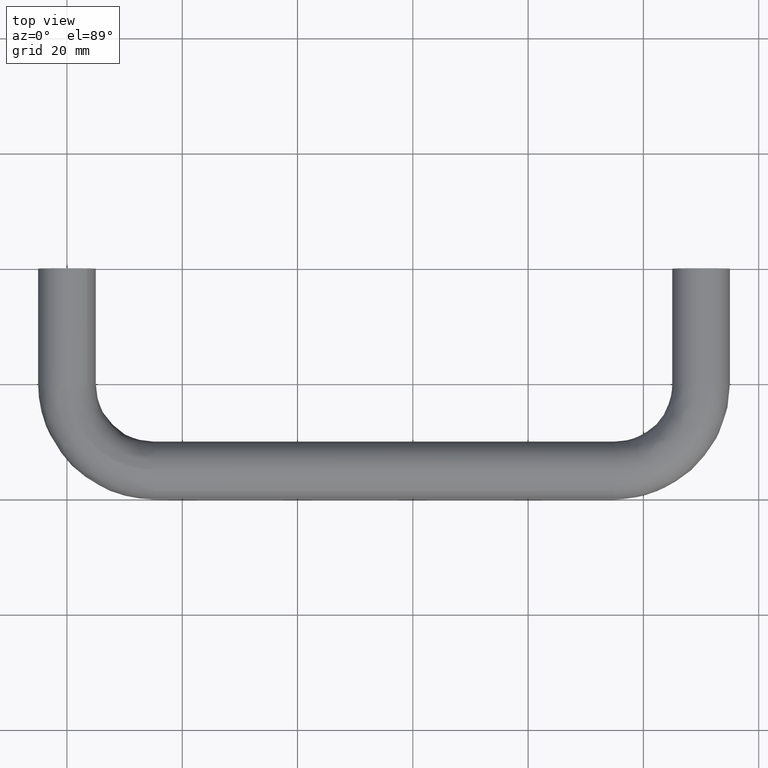
[diagram: clean part render]
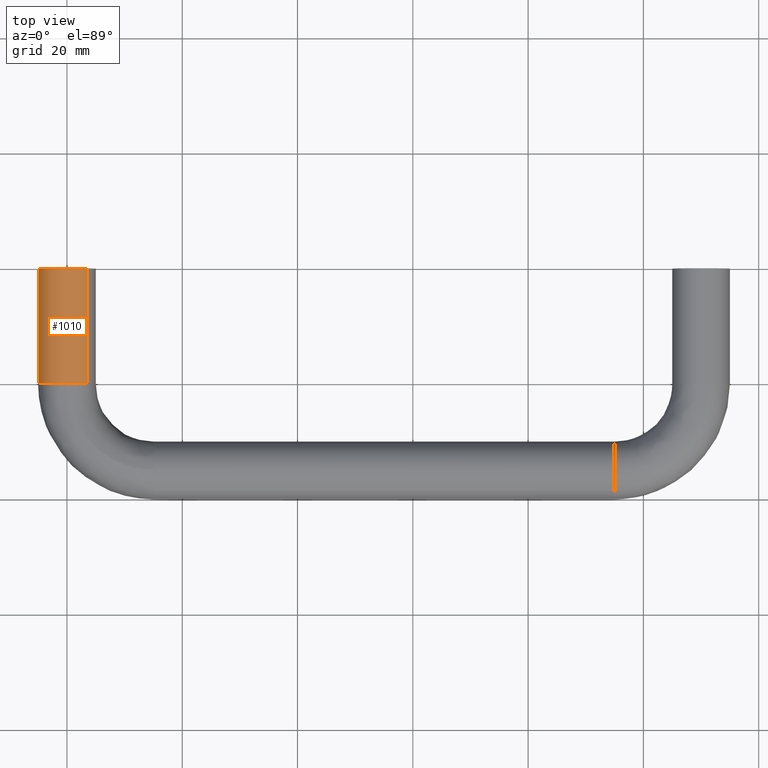
[diagram: same view with one face highlighted and labeled with its STEP entity id]
A machine part, top view. The second image highlights one B-rep face of the part: STEP entity #1010.
In plain terms, the highlighted face is a freeform B-spline surface patch.
Its self-contained STEP definition (entity closure, byte-faithful):
#874=CARTESIAN_POINT('',(3.504546321499253,0.500000000005700,3.566252245770907));
#875=CARTESIAN_POINT('',(-0.061705924271653,0.500000000005699,7.070798567270160));
#876=CARTESIAN_POINT('',(-3.566252245770907,0.500000000005699,3.504546321499253));
#877=CARTESIAN_POINT('',(-7.070798567270160,0.500000000005698,-0.061705924271653));
#878=CARTESIAN_POINT('',(-3.504546321499253,0.500000000005699,-3.566252245770907));
#879=CARTESIAN_POINT('',(0.061705924271653,0.500000000005699,-7.070798567270160));
#880=CARTESIAN_POINT('',(3.566252245770907,0.500000000005700,-3.504546321499253));
#881=CARTESIAN_POINT('',(3.504546321499256,-20.512500000233771,3.566252245770907));
#882=CARTESIAN_POINT('',(-0.061705924271651,-20.512500000233775,7.070798567270160));
#883=CARTESIAN_POINT('',(-3.566252245770904,-20.512500000233771,3.504546321499253));
#884=CARTESIAN_POINT('',(-7.070798567270158,-20.512500000233775,-0.061705924271653));
#885=CARTESIAN_POINT('',(-3.504546321499251,-20.512500000233771,-3.566252245770907));
#886=CARTESIAN_POINT('',(0.061705924271656,-20.512500000233775,-7.070798567270160));
#887=CARTESIAN_POINT('',(3.566252245770909,-20.512500000233771,-3.504546321499253));
#895=(BOUNDED_SURFACE()B_SPLINE_SURFACE(2,1,((#874,#881),(#875,#882),(#876,#883),(#877,#884),(#878,#885),(#879,#886),(#880,#887)),.UNSPECIFIED.,.F.,.F.,.U.)B_SPLINE_SURFACE_WITH_KNOTS((3,2,2,3),(2,2),(0.0,8.284271247461899,16.568542494923800,24.852813742385688),(0.0,21.012500000239470),.UNSPECIFIED.)GEOMETRIC_REPRESENTATION_ITEM()RATIONAL_B_SPLINE_SURFACE(((1.0,1.0),(0.707106781186548,0.707106781186548),(1.0,1.0),(0.707106781186548,0.707106781186548),(1.0,1.0),(0.707106781186548,0.707106781186548),(1.0,1.0)))REPRESENTATION_ITEM('')SURFACE());
#896=CARTESIAN_POINT('',(0.062830199628879,-20.000000000205208,4.999605221016415));
#897=VERTEX_POINT('',#896);
#898=CARTESIAN_POINT('',(3.504546321925250,-20.000000000062158,3.566252245321120));
#899=VERTEX_POINT('',#898);
#900=CARTESIAN_POINT('',(0.062830199628879,-20.000000000205205,4.999605221016415));
#901=CARTESIAN_POINT('',(2.071645074840382,-20.000000000121712,4.974360379779231));
#902=CARTESIAN_POINT('',(3.504546321925250,-20.000000000062158,3.566252245321120));
#910=(BOUNDED_CURVE()B_SPLINE_CURVE(2,(#900,#901,#902),.UNSPECIFIED.,.F.,.U.)B_SPLINE_CURVE_WITH_KNOTS((3,3),(0.752215704093194,0.873683242447675),.UNSPECIFIED.)CURVE()GEOMETRIC_REPRESENTATION_ITEM()RATIONAL_B_SPLINE_CURVE((0.994854295609666,0.855068723091266,0.853569641250545))REPRESENTATION_ITEM(''));
#911=EDGE_CURVE('',#897,#899,#910,.T.);
#912=ORIENTED_EDGE('',*,*,#911,.T.);
#913=CARTESIAN_POINT('',(3.504546037652561,1.110223E-016,3.566252524706231));
#914=VERTEX_POINT('',#913);
#915=CARTESIAN_POINT('',(3.504546037652561,1.110223E-016,3.566252524706231));
#916=CARTESIAN_POINT('',(3.504546321925250,-20.000000000062158,3.566252245321120));
#917=QUASI_UNIFORM_CURVE('',1,(#915,#916),.UNSPECIFIED.,.F.,.U.);
#918=EDGE_CURVE('',#914,#899,#917,.T.);
#919=ORIENTED_EDGE('',*,*,#918,.F.);
#920=CARTESIAN_POINT('',(-5.0,0.0,0.0));
#921=VERTEX_POINT('',#920);
#922=CARTESIAN_POINT('',(-5.0,0.0,0.0));
#923=CARTESIAN_POINT('',(-5.000000000000001,0.0,5.000000000000001));
#924=CARTESIAN_POINT('',(0.0,0.0,5.0));
#925=CARTESIAN_POINT('',(2.045553542568838,0.0,5.0));
#926=CARTESIAN_POINT('',(3.504546037652562,1.110223E-016,3.566252524706231));
#934=(BOUNDED_CURVE()B_SPLINE_CURVE(2,(#922,#923,#924,#925,#926),.UNSPECIFIED.,.F.,.U.)B_SPLINE_CURVE_WITH_KNOTS((3,2,3),(0.500000000000000,0.750000000000000,0.873683218389311),.UNSPECIFIED.)CURVE()GEOMETRIC_REPRESENTATION_ITEM()RATIONAL_B_SPLINE_CURVE((1.0,0.707106781186548,1.0,0.855096096210990,0.853569641844379))REPRESENTATION_ITEM(''));
#935=EDGE_CURVE('',#921,#914,#934,.T.);
#936=ORIENTED_EDGE('',*,*,#935,.F.);
#937=CARTESIAN_POINT('',(3.566252573108815,1.110223E-016,-3.504545988397716));
#938=VERTEX_POINT('',#937);
#939=CARTESIAN_POINT('',(3.566252573108815,1.110223E-016,-3.504545988397716));
#940=CARTESIAN_POINT('',(2.096674557932352,0.0,-5.0));
#941=CARTESIAN_POINT('',(0.0,0.0,-5.0));
#942=CARTESIAN_POINT('',(-5.000000000000001,0.0,-5.000000000000001));
#943=CARTESIAN_POINT('',(-5.0,0.0,0.0));
#951=(BOUNDED_CURVE()B_SPLINE_CURVE(2,(#939,#940,#941,#942,#943),.UNSPECIFIED.,.F.,.U.)B_SPLINE_CURVE_WITH_KNOTS((3,2,3),(0.123683214221282,0.250000000000000,0.500000000000000),.UNSPECIFIED.)CURVE()GEOMETRIC_REPRESENTATION_ITEM()RATIONAL_B_SPLINE_CURVE((0.853569641947260,0.852010680092408,1.0,0.707106781186548,1.0))REPRESENTATION_ITEM(''));
#952=EDGE_CURVE('',#938,#921,#951,.T.);
#953=ORIENTED_EDGE('',*,*,#952,.F.);
#954=CARTESIAN_POINT('',(3.566252577198210,-20.000000000000011,-3.504545984236320));
#955=VERTEX_POINT('',#954);
#956=CARTESIAN_POINT('',(3.566252573108815,1.110223E-016,-3.504545988397716));
#957=CARTESIAN_POINT('',(3.566252577198210,-20.000000000000011,-3.504545984236320));
#958=QUASI_UNIFORM_CURVE('',1,(#956,#957),.UNSPECIFIED.,.F.,.U.);
#959=EDGE_CURVE('',#938,#955,#958,.T.);
#960=ORIENTED_EDGE('',*,*,#959,.T.);
#961=CARTESIAN_POINT('',(-0.348666259149990,-20.000000000227931,-4.987828369113188));
#962=VERTEX_POINT('',#961);
#963=CARTESIAN_POINT('',(3.566252577198210,-20.000000000000007,-3.504545984236320));
#964=CARTESIAN_POINT('',(2.096674564792697,-20.000000000000004,-5.0));
#965=CARTESIAN_POINT('',(2.449213E-015,-20.0,-5.0));
#966=CARTESIAN_POINT('',(-0.174545580650999,-20.0,-4.999999999999999));
#967=CARTESIAN_POINT('',(-0.348666259149990,-20.000000000227928,-4.987828369113188));
#975=(BOUNDED_CURVE()B_SPLINE_CURVE(2,(#963,#964,#965,#966,#967),.UNSPECIFIED.,.F.,.U.)B_SPLINE_CURVE_WITH_KNOTS((3,2,3),(0.123683213869138,0.250000000000000,0.262166313552638),.UNSPECIFIED.)CURVE()GEOMETRIC_REPRESENTATION_ITEM()RATIONAL_B_SPLINE_CURVE((0.853569641955952,0.852010679679845,1.0,0.985746277049897,0.972879876201421))REPRESENTATION_ITEM(''));
#976=EDGE_CURVE('',#955,#962,#975,.T.);
#977=ORIENTED_EDGE('',*,*,#976,.T.);
#978=CARTESIAN_POINT('',(-4.999999999999997,-20.0,0.0));
#979=VERTEX_POINT('',#978);
#980=CARTESIAN_POINT('',(-0.348666259149990,-20.000000000227928,-4.987828369113188));
#981=CARTESIAN_POINT('',(-4.999999999999997,-19.999999999999993,-4.662684233947663));
#982=CARTESIAN_POINT('',(-4.999999999999997,-20.0,0.0));
#990=(BOUNDED_CURVE()B_SPLINE_CURVE(2,(#980,#981,#982),.UNSPECIFIED.,.F.,.U.)B_SPLINE_CURVE_WITH_KNOTS((3,3),(0.262166313552638,0.500000000000000),.UNSPECIFIED.)CURVE()GEOMETRIC_REPRESENTATION_ITEM()RATIONAL_B_SPLINE_CURVE((0.972879876201421,0.721360504136651,1.0))REPRESENTATION_ITEM(''));
#991=EDGE_CURVE('',#962,#979,#990,.T.);
#992=ORIENTED_EDGE('',*,*,#991,.T.);
#993=CARTESIAN_POINT('',(-4.999999999999997,-20.0,0.0));
#994=CARTESIAN_POINT('',(-4.999999999999997,-19.999999999999996,5.000000000000001));
#995=CARTESIAN_POINT('',(2.449213E-015,-20.0,5.0));
#996=CARTESIAN_POINT('',(0.031416340171596,-20.0,5.0));
#997=CARTESIAN_POINT('',(0.062830199628879,-20.000000000205205,4.999605221016415));
#1005=(BOUNDED_CURVE()B_SPLINE_CURVE(2,(#993,#994,#995,#996,#997),.UNSPECIFIED.,.F.,.U.)B_SPLINE_CURVE_WITH_KNOTS((3,2,3),(0.500000000000000,0.750000000000000,0.752215704093195),.UNSPECIFIED.)CURVE()GEOMETRIC_REPRESENTATION_ITEM()RATIONAL_B_SPLINE_CURVE((1.0,0.707106781186548,1.0,0.997404141184824,0.994854295609665))REPRESENTATION_ITEM(''));
#1006=EDGE_CURVE('',#979,#897,#1005,.T.);
#1007=ORIENTED_EDGE('',*,*,#1006,.T.);
#1008=EDGE_LOOP('',(#912,#919,#936,#953,#960,#977,#992,#1007));
#1009=FACE_OUTER_BOUND('',#1008,.T.);
#1010=ADVANCED_FACE('',(#1009),#895,.T.);